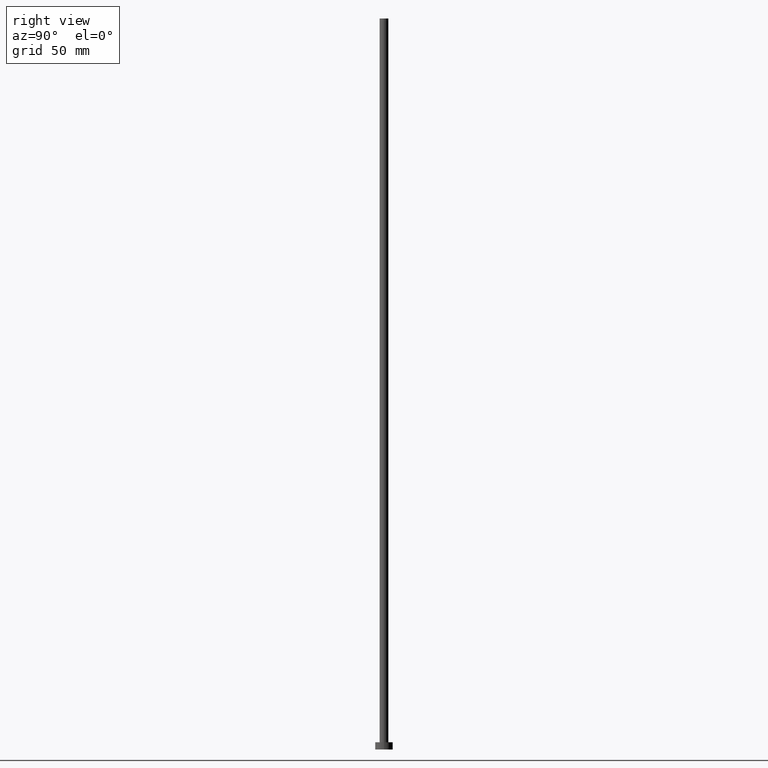
[diagram: clean part render]
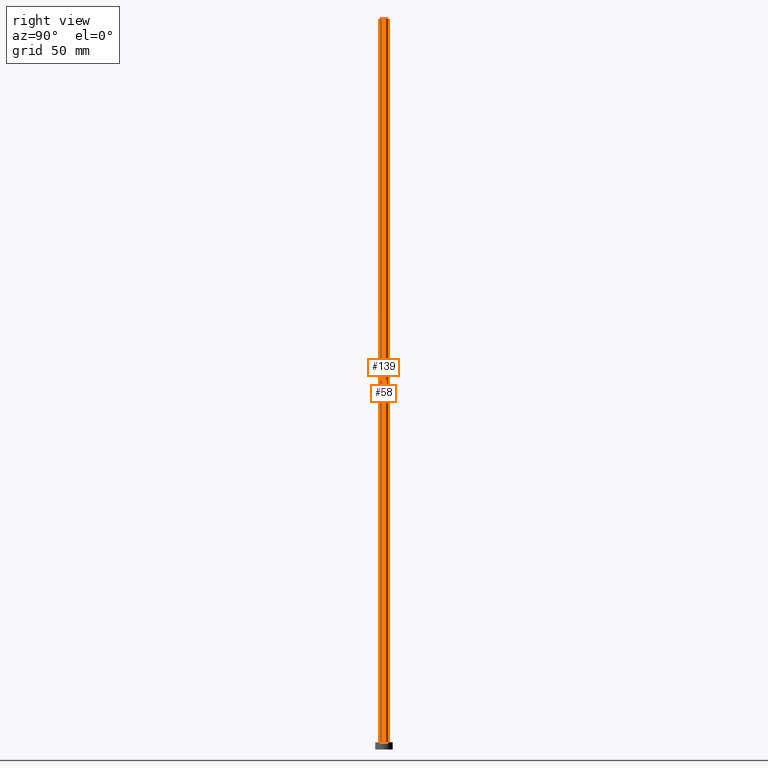
[diagram: same view with one multi-face feature highlighted, each face labeled with its STEP entity id]
A machine part, right view. The highlighted faces form ONE feature: a constant-radius fillet chain: 2 tangent blend faces with common blend radius 3 mm. The faces share edges in the B-rep.
Their STEP definitions:
[1] entity #58 (Cylinder):
#7 = DIRECTION ( 'NONE',  ( -0.000000000000000000, -0.000000000000000000, -1.000000000000000000 ) ) ;
#9 = DIRECTION ( 'NONE',  ( 0.000000000000000000, 0.000000000000000000, 1.000000000000000000 ) ) ;
#12 = DIRECTION ( 'NONE',  ( 1.000000000000000000, 0.000000000000000000, 0.000000000000000000 ) ) ;
#21 = ORIENTED_EDGE ( 'NONE', *, *, #60, .F. ) ;
#27 = CARTESIAN_POINT ( 'NONE',  ( -3.000000000000000444, 0.000000000000000000, 500.0000000000000000 ) ) ;
#37 = CARTESIAN_POINT ( 'NONE',  ( 3.000000000000000444, 3.673940397442060361E-16, 5.000000000000000000 ) ) ;
#39 = EDGE_CURVE ( 'NONE', #120, #142, #69, .T. ) ;
#42 = VERTEX_POINT ( 'NONE', #141 ) ;
#55 = VECTOR ( 'NONE', #229, 1000.000000000000000 ) ;
#58 = ADVANCED_FACE ( 'NONE', ( #234 ), #129, .T. ) ;
#60 = EDGE_CURVE ( 'NONE', #182, #42, #85, .T. ) ;
#64 = DIRECTION ( 'NONE',  ( -0.000000000000000000, -0.000000000000000000, -1.000000000000000000 ) ) ;
#69 = LINE ( 'NONE', #143, #87 ) ;
#74 = AXIS2_PLACEMENT_3D ( 'NONE', #163, #250, #12 ) ;
#85 = LINE ( 'NONE', #27, #55 ) ;
#86 = AXIS2_PLACEMENT_3D ( 'NONE', #187, #9, #167 ) ;
#87 = VECTOR ( 'NONE', #64, 1000.000000000000000 ) ;
#89 = EDGE_CURVE ( 'NONE', #142, #42, #121, .T. ) ;
#90 = ORIENTED_EDGE ( 'NONE', *, *, #89, .T. ) ;
#92 = CIRCLE ( 'NONE', #74, 3.000000000000000444 ) ;
#105 = DIRECTION ( 'NONE',  ( -1.000000000000000000, 0.000000000000000000, 0.000000000000000000 ) ) ;
#120 = VERTEX_POINT ( 'NONE', #247 ) ;
#121 = CIRCLE ( 'NONE', #86, 3.000000000000000444 ) ;
#124 = ORIENTED_EDGE ( 'NONE', *, *, #39, .T. ) ;
#129 = CYLINDRICAL_SURFACE ( 'NONE', #132, 3.000000000000000444 ) ;
#130 = EDGE_CURVE ( 'NONE', #120, #182, #92, .T. ) ;
#132 = AXIS2_PLACEMENT_3D ( 'NONE', #140, #7, #105 ) ;
#136 = ORIENTED_EDGE ( 'NONE', *, *, #130, .F. ) ;
#140 = CARTESIAN_POINT ( 'NONE',  ( 0.000000000000000000, 0.000000000000000000, 500.0000000000000000 ) ) ;
#141 = CARTESIAN_POINT ( 'NONE',  ( -3.000000000000000444, 0.000000000000000000, 5.000000000000000000 ) ) ;
#142 = VERTEX_POINT ( 'NONE', #37 ) ;
#143 = CARTESIAN_POINT ( 'NONE',  ( 3.000000000000000444, 3.673940397442060361E-16, 500.0000000000000000 ) ) ;
#163 = CARTESIAN_POINT ( 'NONE',  ( 0.000000000000000000, 0.000000000000000000, 500.0000000000000000 ) ) ;
#167 = DIRECTION ( 'NONE',  ( 1.000000000000000000, 0.000000000000000000, 0.000000000000000000 ) ) ;
#182 = VERTEX_POINT ( 'NONE', #194 ) ;
#187 = CARTESIAN_POINT ( 'NONE',  ( 0.000000000000000000, 0.000000000000000000, 5.000000000000000000 ) ) ;
#194 = CARTESIAN_POINT ( 'NONE',  ( -3.000000000000000444, 0.000000000000000000, 500.0000000000000000 ) ) ;
#229 = DIRECTION ( 'NONE',  ( -0.000000000000000000, -0.000000000000000000, -1.000000000000000000 ) ) ;
#230 = EDGE_LOOP ( 'NONE', ( #136, #124, #90, #21 ) ) ;
#234 = FACE_OUTER_BOUND ( 'NONE', #230, .T. ) ;
#247 = CARTESIAN_POINT ( 'NONE',  ( 3.000000000000000444, 3.673940397442060361E-16, 500.0000000000000000 ) ) ;
#250 = DIRECTION ( 'NONE',  ( 0.000000000000000000, 0.000000000000000000, 1.000000000000000000 ) ) ;
[2] entity #139 (Cylinder):
#2 = DIRECTION ( 'NONE',  ( 1.000000000000000000, 0.000000000000000000, 0.000000000000000000 ) ) ;
#27 = CARTESIAN_POINT ( 'NONE',  ( -3.000000000000000444, 0.000000000000000000, 500.0000000000000000 ) ) ;
#35 = CYLINDRICAL_SURFACE ( 'NONE', #36, 3.000000000000000444 ) ;
#36 = AXIS2_PLACEMENT_3D ( 'NONE', #255, #91, #213 ) ;
#37 = CARTESIAN_POINT ( 'NONE',  ( 3.000000000000000444, 3.673940397442060361E-16, 5.000000000000000000 ) ) ;
#38 = CARTESIAN_POINT ( 'NONE',  ( 0.000000000000000000, 0.000000000000000000, 500.0000000000000000 ) ) ;
#39 = EDGE_CURVE ( 'NONE', #120, #142, #69, .T. ) ;
#42 = VERTEX_POINT ( 'NONE', #141 ) ;
#54 = DIRECTION ( 'NONE',  ( 0.000000000000000000, 0.000000000000000000, 1.000000000000000000 ) ) ;
#55 = VECTOR ( 'NONE', #229, 1000.000000000000000 ) ;
#60 = EDGE_CURVE ( 'NONE', #182, #42, #85, .T. ) ;
#64 = DIRECTION ( 'NONE',  ( -0.000000000000000000, -0.000000000000000000, -1.000000000000000000 ) ) ;
#69 = LINE ( 'NONE', #143, #87 ) ;
#73 = DIRECTION ( 'NONE',  ( 1.000000000000000000, 0.000000000000000000, 0.000000000000000000 ) ) ;
#75 = DIRECTION ( 'NONE',  ( 0.000000000000000000, 0.000000000000000000, 1.000000000000000000 ) ) ;
#85 = LINE ( 'NONE', #27, #55 ) ;
#87 = VECTOR ( 'NONE', #64, 1000.000000000000000 ) ;
#91 = DIRECTION ( 'NONE',  ( -0.000000000000000000, -0.000000000000000000, -1.000000000000000000 ) ) ;
#99 = ORIENTED_EDGE ( 'NONE', *, *, #39, .F. ) ;
#108 = AXIS2_PLACEMENT_3D ( 'NONE', #148, #75, #73 ) ;
#116 = FACE_OUTER_BOUND ( 'NONE', #177, .T. ) ;
#120 = VERTEX_POINT ( 'NONE', #247 ) ;
#135 = EDGE_CURVE ( 'NONE', #42, #142, #224, .T. ) ;
#139 = ADVANCED_FACE ( 'NONE', ( #116 ), #35, .T. ) ;
#141 = CARTESIAN_POINT ( 'NONE',  ( -3.000000000000000444, 0.000000000000000000, 5.000000000000000000 ) ) ;
#142 = VERTEX_POINT ( 'NONE', #37 ) ;
#143 = CARTESIAN_POINT ( 'NONE',  ( 3.000000000000000444, 3.673940397442060361E-16, 500.0000000000000000 ) ) ;
#148 = CARTESIAN_POINT ( 'NONE',  ( 0.000000000000000000, 0.000000000000000000, 5.000000000000000000 ) ) ;
#158 = ORIENTED_EDGE ( 'NONE', *, *, #174, .F. ) ;
#170 = AXIS2_PLACEMENT_3D ( 'NONE', #38, #54, #2 ) ;
#174 = EDGE_CURVE ( 'NONE', #182, #120, #216, .T. ) ;
#177 = EDGE_LOOP ( 'NONE', ( #99, #158, #242, #199 ) ) ;
#182 = VERTEX_POINT ( 'NONE', #194 ) ;
#194 = CARTESIAN_POINT ( 'NONE',  ( -3.000000000000000444, 0.000000000000000000, 500.0000000000000000 ) ) ;
#199 = ORIENTED_EDGE ( 'NONE', *, *, #135, .T. ) ;
#213 = DIRECTION ( 'NONE',  ( -1.000000000000000000, 0.000000000000000000, 0.000000000000000000 ) ) ;
#216 = CIRCLE ( 'NONE', #170, 3.000000000000000444 ) ;
#224 = CIRCLE ( 'NONE', #108, 3.000000000000000444 ) ;
#229 = DIRECTION ( 'NONE',  ( -0.000000000000000000, -0.000000000000000000, -1.000000000000000000 ) ) ;
#242 = ORIENTED_EDGE ( 'NONE', *, *, #60, .T. ) ;
#247 = CARTESIAN_POINT ( 'NONE',  ( 3.000000000000000444, 3.673940397442060361E-16, 500.0000000000000000 ) ) ;
#255 = CARTESIAN_POINT ( 'NONE',  ( 0.000000000000000000, 0.000000000000000000, 500.0000000000000000 ) ) ;